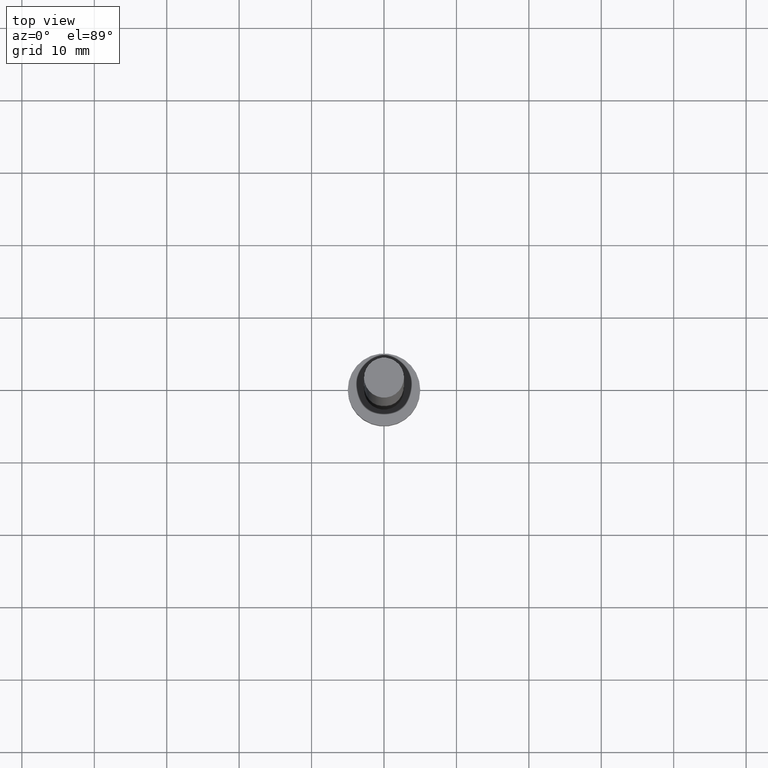
[diagram: clean part render]
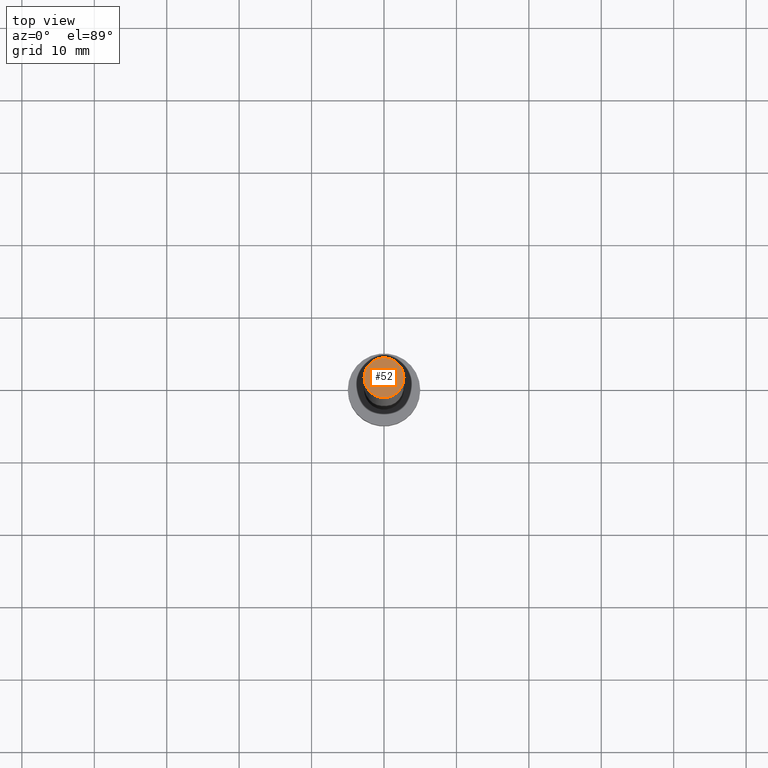
[diagram: same view with one face highlighted and labeled with its STEP entity id]
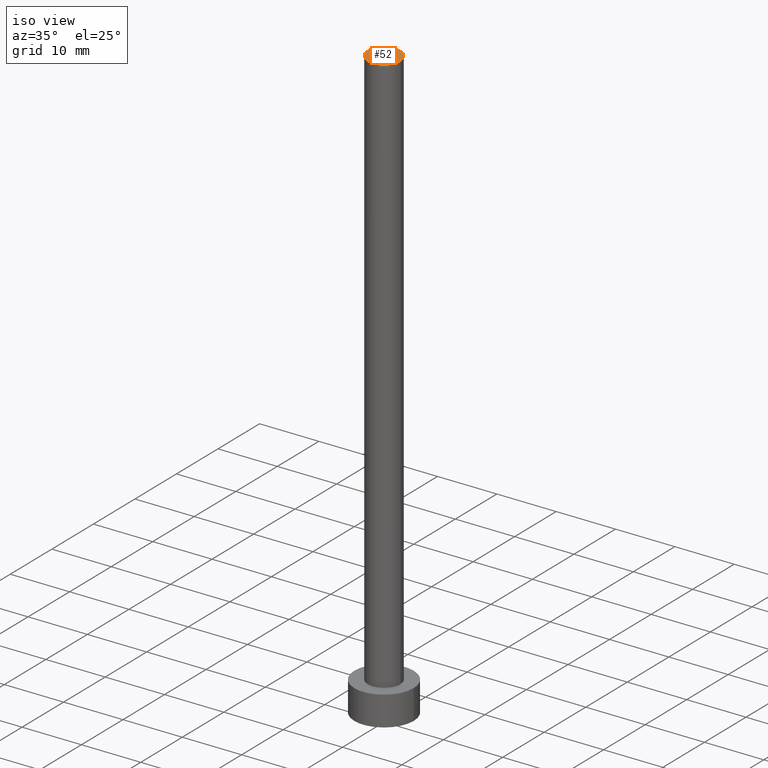
[diagram: same view with one face highlighted and labeled with its STEP entity id]
A machine part, top view. The second image highlights one B-rep face of the part: STEP entity #52.
A second angle (iso view) of the same face is appended — the face is thin or edge-on in the first view.
In plain terms, the highlighted planar face has unit normal (0, 0, 1).
Its self-contained STEP definition (entity closure, byte-faithful):
#2 = CARTESIAN_POINT ( 'NONE',  ( 0.000000000000000000, 0.000000000000000000, 100.0000000000000000 ) ) ;
#32 = EDGE_CURVE ( 'NONE', #173, #184, #54, .T. ) ;
#42 = DIRECTION ( 'NONE',  ( 1.000000000000000000, 0.000000000000000000, -0.000000000000000000 ) ) ;
#52 = ADVANCED_FACE ( 'NONE', ( #108 ), #192, .T. ) ;
#54 = CIRCLE ( 'NONE', #112, 2.750000000000000000 ) ;
#65 = DIRECTION ( 'NONE',  ( 1.000000000000000000, 0.000000000000000000, 0.000000000000000000 ) ) ;
#86 = CARTESIAN_POINT ( 'NONE',  ( 0.000000000000000000, 0.000000000000000000, 100.0000000000000000 ) ) ;
#105 = EDGE_LOOP ( 'NONE', ( #238, #255 ) ) ;
#107 = AXIS2_PLACEMENT_3D ( 'NONE', #123, #169, #65 ) ;
#108 = FACE_OUTER_BOUND ( 'NONE', #105, .T. ) ;
#112 = AXIS2_PLACEMENT_3D ( 'NONE', #86, #226, #194 ) ;
#123 = CARTESIAN_POINT ( 'NONE',  ( 0.000000000000000000, 0.000000000000000000, 100.0000000000000000 ) ) ;
#147 = CARTESIAN_POINT ( 'NONE',  ( -2.750000000000000000, 0.000000000000000000, 100.0000000000000000 ) ) ;
#169 = DIRECTION ( 'NONE',  ( 0.000000000000000000, 0.000000000000000000, 1.000000000000000000 ) ) ;
#173 = VERTEX_POINT ( 'NONE', #239 ) ;
#174 = DIRECTION ( 'NONE',  ( 0.000000000000000000, 0.000000000000000000, 1.000000000000000000 ) ) ;
#178 = EDGE_CURVE ( 'NONE', #184, #173, #214, .T. ) ;
#182 = AXIS2_PLACEMENT_3D ( 'NONE', #2, #174, #42 ) ;
#184 = VERTEX_POINT ( 'NONE', #147 ) ;
#192 = PLANE ( 'NONE',  #182 ) ;
#194 = DIRECTION ( 'NONE',  ( 1.000000000000000000, 0.000000000000000000, 0.000000000000000000 ) ) ;
#214 = CIRCLE ( 'NONE', #107, 2.750000000000000000 ) ;
#226 = DIRECTION ( 'NONE',  ( 0.000000000000000000, 0.000000000000000000, 1.000000000000000000 ) ) ;
#238 = ORIENTED_EDGE ( 'NONE', *, *, #178, .T. ) ;
#239 = CARTESIAN_POINT ( 'NONE',  ( 2.750000000000000000, 3.367778697655221012E-16, 100.0000000000000000 ) ) ;
#255 = ORIENTED_EDGE ( 'NONE', *, *, #32, .T. ) ;